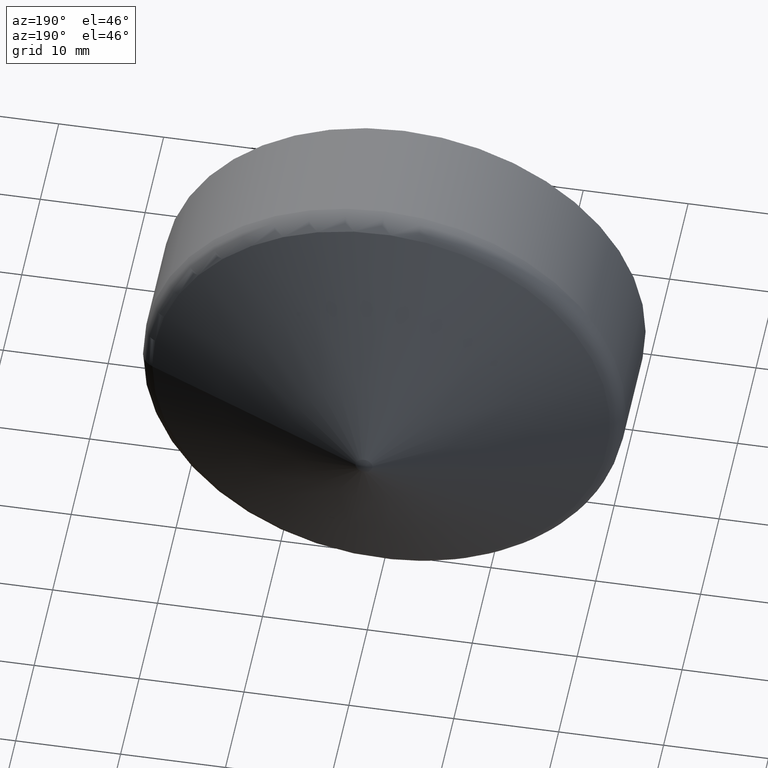
[diagram: clean part render]
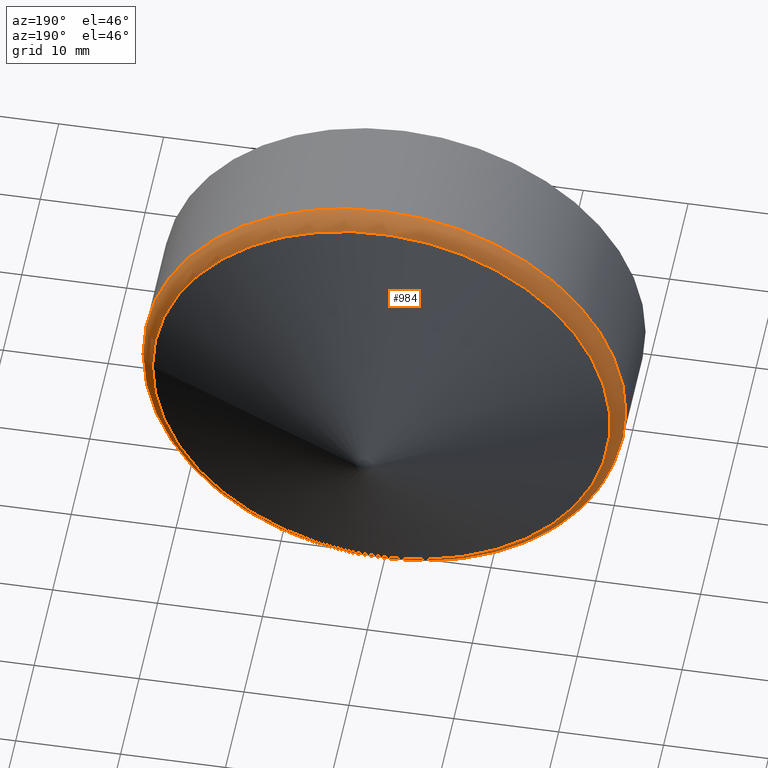
[diagram: same view with one face highlighted and labeled with its STEP entity id]
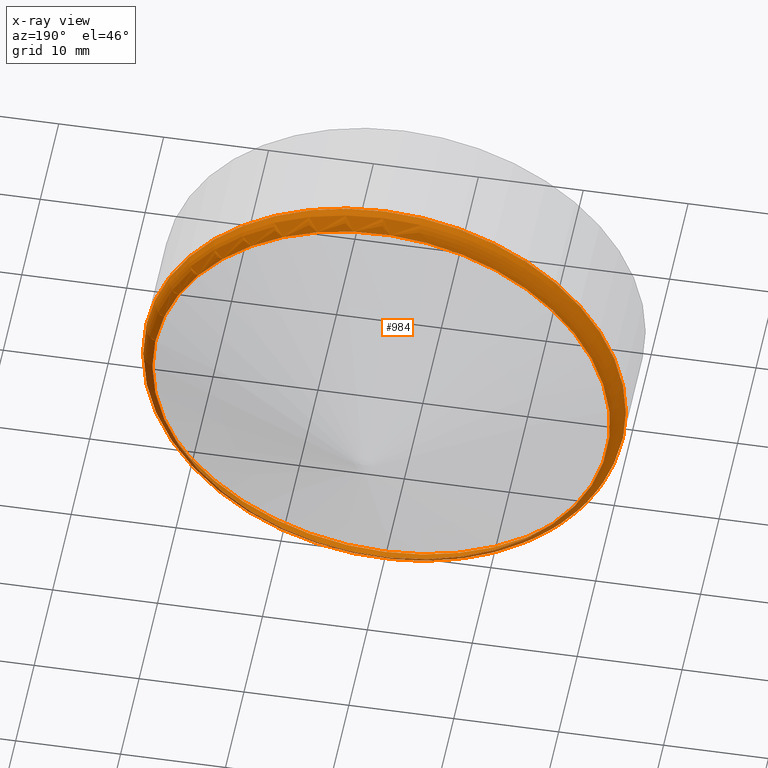
[diagram: x-ray of the same camera — body ghosted, the highlighted face saturated]
A machine part, auxiliary view. The second image highlights one B-rep face of the part: STEP entity #984.
The next image is the same camera in x-ray: the body ghosted, the highlighted face saturated — about 0% of this face is hidden behind the body in this view.
In plain terms, the highlighted toroidal blend (fillet) surface has major radius 21 mm and minor (blend) radius 2 mm.
Its self-contained STEP definition (entity closure, byte-faithful):
#124 = DIRECTION ( 'NONE',  ( 2.041077998578925000E-017, -1.000000000000000000, -0.0000000000000000000 ) ) ;
#759 = DIRECTION ( 'NONE',  ( 1.000000000000000000, 0.0000000000000000000, 0.0000000000000000000 ) ) ;
#984 = ADVANCED_FACE ( 'NONE', ( #5448, #8773 ), #1994, .T. ) ;
#1045 = EDGE_CURVE ( 'NONE', #5534, #5534, #4118, .T. ) ;
#1138 = ORIENTED_EDGE ( 'NONE', *, *, #7607, .F. ) ;
#1180 = EDGE_LOOP ( 'NONE', ( #8967 ) ) ;
#1420 = VERTEX_POINT ( 'NONE', #3631 ) ;
#1776 = CARTESIAN_POINT ( 'NONE',  ( 2.312092690206327800E-016, 10.67219826084013500, 0.0000000000000000000 ) ) ;
#1994 = TOROIDAL_SURFACE ( 'NONE', #4848, 21.00000000000000000, 1.999999999999999100 ) ;
#3267 = EDGE_LOOP ( 'NONE', ( #1138 ) ) ;
#3572 = CIRCLE ( 'NONE', #4874, 23.00000000000000000 ) ;
#3631 = CARTESIAN_POINT ( 'NONE',  ( 23.00000000000000000, 10.67219826084013500, 0.0000000000000000000 ) ) ;
#3804 = DIRECTION ( 'NONE',  ( 1.000000000000000000, 0.0000000000000000000, 0.0000000000000000000 ) ) ;
#4118 = CIRCLE ( 'NONE', #8056, 21.81187486863689200 ) ;
#4278 = CARTESIAN_POINT ( 'NONE',  ( 1.939024098649978400E-016, 12.50000000000000000, 0.0000000000000000000 ) ) ;
#4848 = AXIS2_PLACEMENT_3D ( 'NONE', #7232, #124, #5766 ) ;
#4874 = AXIS2_PLACEMENT_3D ( 'NONE', #1776, #8846, #3804 ) ;
#5197 = CARTESIAN_POINT ( 'NONE',  ( 21.81187486863689200, 12.50000000000000000, 0.0000000000000000000 ) ) ;
#5448 = FACE_OUTER_BOUND ( 'NONE', #1180, .T. ) ;
#5534 = VERTEX_POINT ( 'NONE', #5197 ) ;
#5730 = DIRECTION ( 'NONE',  ( 2.041077998578925000E-017, -1.000000000000000000, -0.0000000000000000000 ) ) ;
#5766 = DIRECTION ( 'NONE',  ( 1.000000000000000000, 2.041077998578924700E-017, 0.0000000000000000000 ) ) ;
#7232 = CARTESIAN_POINT ( 'NONE',  ( 0.0000000000000000000, 10.67219826084013500, 0.0000000000000000000 ) ) ;
#7607 = EDGE_CURVE ( 'NONE', #1420, #1420, #3572, .T. ) ;
#8056 = AXIS2_PLACEMENT_3D ( 'NONE', #4278, #5730, #759 ) ;
#8773 = FACE_OUTER_BOUND ( 'NONE', #3267, .T. ) ;
#8846 = DIRECTION ( 'NONE',  ( 2.041077998578925000E-017, -1.000000000000000000, -0.0000000000000000000 ) ) ;
#8967 = ORIENTED_EDGE ( 'NONE', *, *, #1045, .T. ) ;